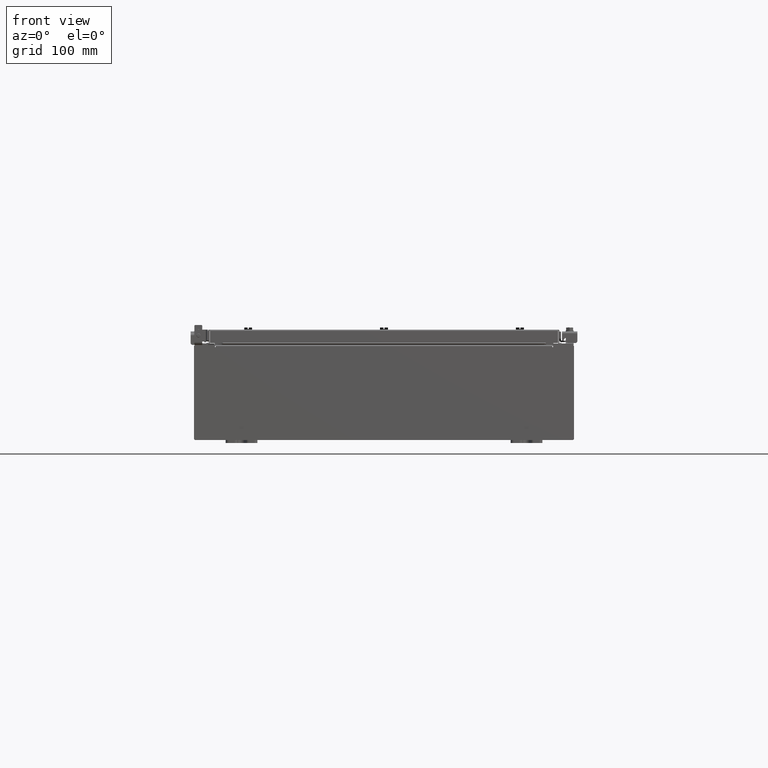
[diagram: clean part render]
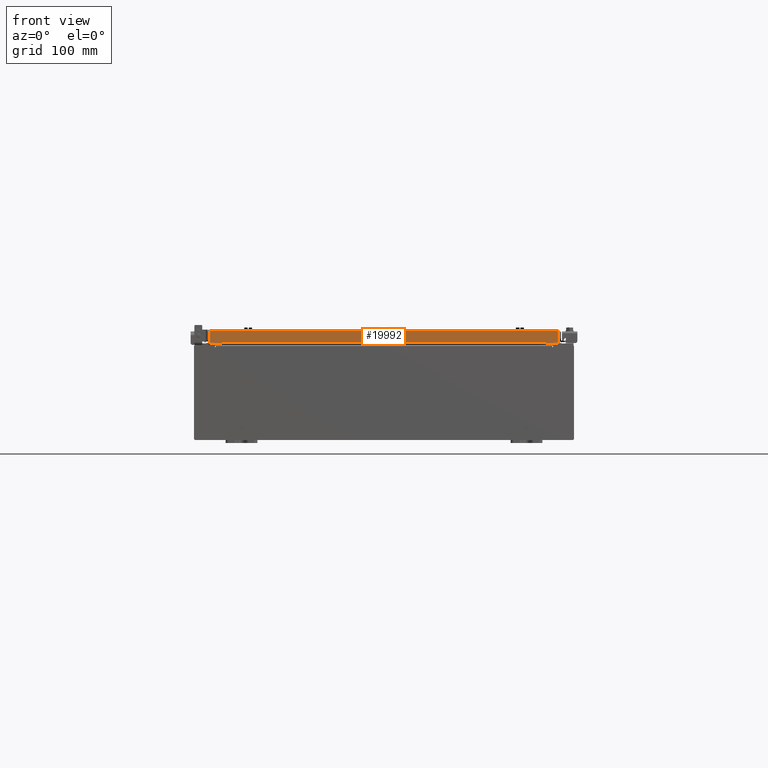
[diagram: same view with one face highlighted and labeled with its STEP entity id]
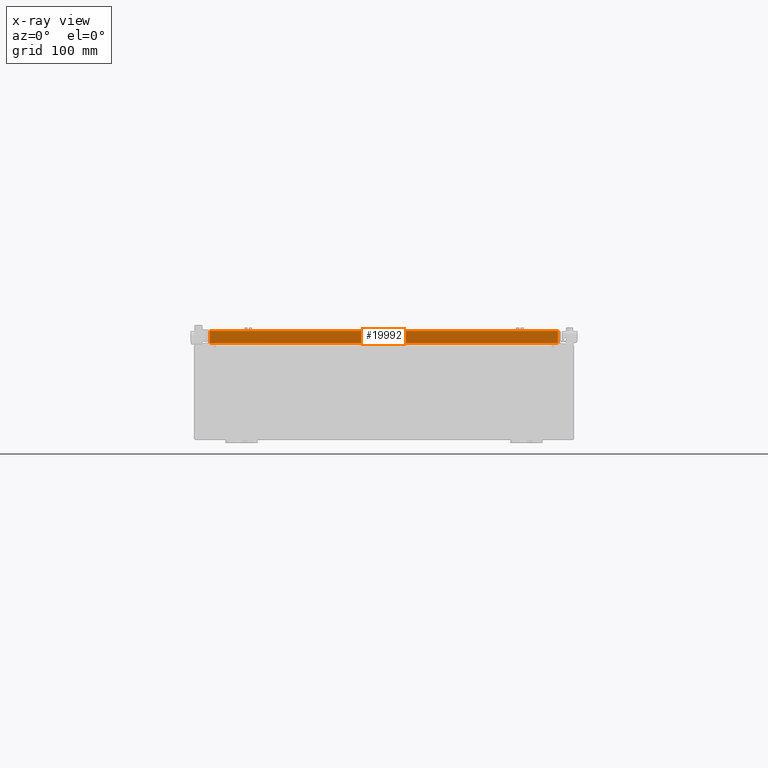
[diagram: x-ray of the same camera — body ghosted, the highlighted face saturated]
A machine part, front view. The second image highlights one B-rep face of the part: STEP entity #19992.
The next image is the same camera in x-ray: the body ghosted, the highlighted face saturated — about 0% of this face is hidden behind the body in this view.
In plain terms, the highlighted planar face has unit normal (-0, 1, -0).
Its self-contained STEP definition (entity closure, byte-faithful):
#178 = DIRECTION ( 'NONE',  ( 1.000000000000000000, 6.951393977153906300E-032, -9.864047639156036200E-017 ) ) ;
#975 = VECTOR ( 'NONE', #178, 39.37007874015748100 ) ;
#1279 = CARTESIAN_POINT ( 'NONE',  ( 10.98915786437626500, -17.09400000000000100, -0.08769999999999897300 ) ) ;
#1413 = ORIENTED_EDGE ( 'NONE', *, *, #4113, .F. ) ;
#1424 = LINE ( 'NONE', #14336, #6766 ) ;
#2141 = DIRECTION ( 'NONE',  ( 0.0000000000000000000, -2.818880942772360500E-015, -1.000000000000000000 ) ) ;
#2507 = CARTESIAN_POINT ( 'NONE',  ( -10.98915786437627200, -17.09400000000000100, -0.8499999999999969800 ) ) ;
#3398 = VECTOR ( 'NONE', #19839, 39.37007874015748100 ) ;
#3632 = EDGE_LOOP ( 'NONE', ( #16599, #18728, #3768, #16803, #13783, #1413 ) ) ;
#3768 = ORIENTED_EDGE ( 'NONE', *, *, #17777, .F. ) ;
#3984 = CARTESIAN_POINT ( 'NONE',  ( 10.23915786437626700, -17.09399999999999800, -0.8500000000000012000 ) ) ;
#4113 = EDGE_CURVE ( 'NONE', #21277, #11392, #1424, .T. ) ;
#4272 = VERTEX_POINT ( 'NONE', #16534 ) ;
#5326 = LINE ( 'NONE', #21922, #18195 ) ;
#5334 = VERTEX_POINT ( 'NONE', #17183 ) ;
#5740 = EDGE_CURVE ( 'NONE', #5334, #4272, #18893, .T. ) ;
#6766 = VECTOR ( 'NONE', #23286, 39.37007874015748100 ) ;
#6911 = DIRECTION ( 'NONE',  ( -3.475696988576954900E-031, 1.000000000000000000, -2.818880942772360500E-015 ) ) ;
#7331 = CARTESIAN_POINT ( 'NONE',  ( 11.07799999999999600, -17.09400000000000100, -0.08770000000000007000 ) ) ;
#8537 = CARTESIAN_POINT ( 'NONE',  ( 10.98915786437626700, -17.09400000000000100, -0.8499999999999996400 ) ) ;
#8641 = FACE_OUTER_BOUND ( 'NONE', #3632, .T. ) ;
#9669 = EDGE_CURVE ( 'NONE', #11360, #21277, #20100, .T. ) ;
#11360 = VERTEX_POINT ( 'NONE', #15616 ) ;
#11392 = VERTEX_POINT ( 'NONE', #8537 ) ;
#12717 = CARTESIAN_POINT ( 'NONE',  ( 11.07799999999999600, -17.09400000000000100, -0.8499999999999996400 ) ) ;
#13783 = ORIENTED_EDGE ( 'NONE', *, *, #21637, .F. ) ;
#14053 = PLANE ( 'NONE',  #14764 ) ;
#14336 = CARTESIAN_POINT ( 'NONE',  ( 10.98915786437626700, -17.09400000000000100, -0.07469999999999978000 ) ) ;
#14681 = VECTOR ( 'NONE', #20376, 39.37007874015748100 ) ;
#14719 = CARTESIAN_POINT ( 'NONE',  ( -10.98915786437626900, -17.09400000000000100, 4.844676449176231400E-014 ) ) ;
#14764 = AXIS2_PLACEMENT_3D ( 'NONE', #17674, #6911, #19465 ) ;
#15616 = CARTESIAN_POINT ( 'NONE',  ( -10.98915786437627200, -17.09400000000000100, -0.08769999999999787700 ) ) ;
#16534 = CARTESIAN_POINT ( 'NONE',  ( -10.23915786437627100, -17.09399999999999800, -0.8500000000000012000 ) ) ;
#16599 = ORIENTED_EDGE ( 'NONE', *, *, #9669, .F. ) ;
#16605 = EDGE_CURVE ( 'NONE', #11360, #17337, #17464, .T. ) ;
#16803 = ORIENTED_EDGE ( 'NONE', *, *, #5740, .F. ) ;
#17183 = CARTESIAN_POINT ( 'NONE',  ( 10.23915786437626700, -17.09399999999999800, -0.8500000000000012000 ) ) ;
#17337 = VERTEX_POINT ( 'NONE', #2507 ) ;
#17464 = LINE ( 'NONE', #14719, #21670 ) ;
#17674 = CARTESIAN_POINT ( 'NONE',  ( 5.941356432273447100E-030, -17.09400000000000100, 4.844676449176231400E-014 ) ) ;
#17777 = EDGE_CURVE ( 'NONE', #4272, #17337, #21952, .T. ) ;
#18195 = VECTOR ( 'NONE', #18387, 39.37007874015748100 ) ;
#18387 = DIRECTION ( 'NONE',  ( -1.000000000000000000, 4.379057701015053300E-047, 1.233005954894504400E-016 ) ) ;
#18728 = ORIENTED_EDGE ( 'NONE', *, *, #16605, .T. ) ;
#18893 = LINE ( 'NONE', #3984, #14681 ) ;
#19465 = DIRECTION ( 'NONE',  ( 0.0000000000000000000, 2.818880942772360500E-015, 1.000000000000000000 ) ) ;
#19839 = DIRECTION ( 'NONE',  ( -1.000000000000000000, 4.379057701015053300E-047, 1.233005954894504400E-016 ) ) ;
#19992 = ADVANCED_FACE ( 'NONE', ( #8641 ), #14053, .F. ) ;
#20100 = LINE ( 'NONE', #7331, #975 ) ;
#20376 = DIRECTION ( 'NONE',  ( -1.000000000000000000, 0.0000000000000000000, 0.0000000000000000000 ) ) ;
#21277 = VERTEX_POINT ( 'NONE', #1279 ) ;
#21637 = EDGE_CURVE ( 'NONE', #11392, #5334, #5326, .T. ) ;
#21670 = VECTOR ( 'NONE', #2141, 39.37007874015748100 ) ;
#21922 = CARTESIAN_POINT ( 'NONE',  ( 11.07799999999999600, -17.09400000000000100, -0.8499999999999996400 ) ) ;
#21952 = LINE ( 'NONE', #12717, #3398 ) ;
#23286 = DIRECTION ( 'NONE',  ( -0.0000000000000000000, -2.818880942772360500E-015, -1.000000000000000000 ) ) ;